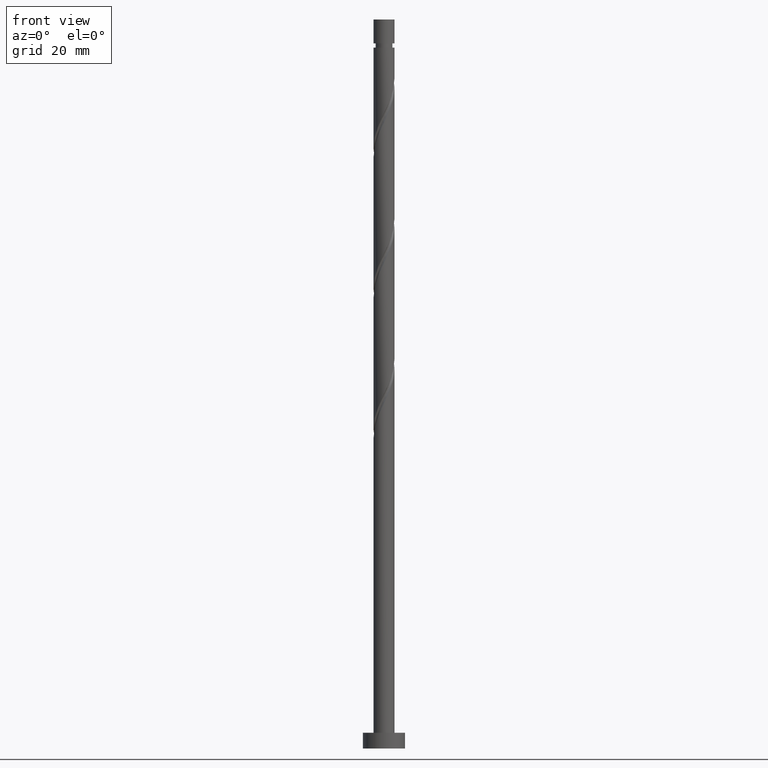
[diagram: clean part render]
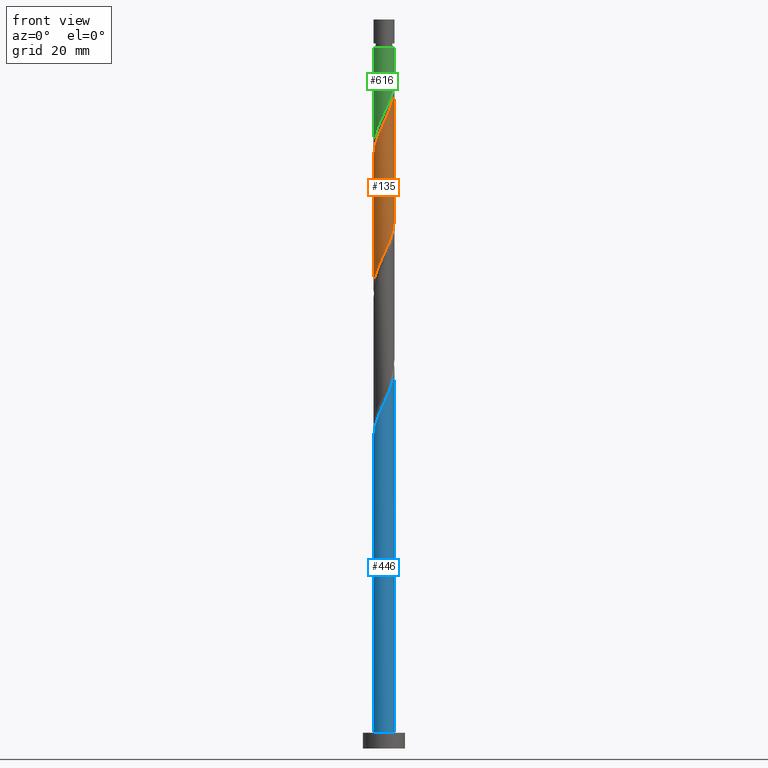
[diagram: same view with three faces highlighted in distinct colors, each labeled with its STEP entity id]
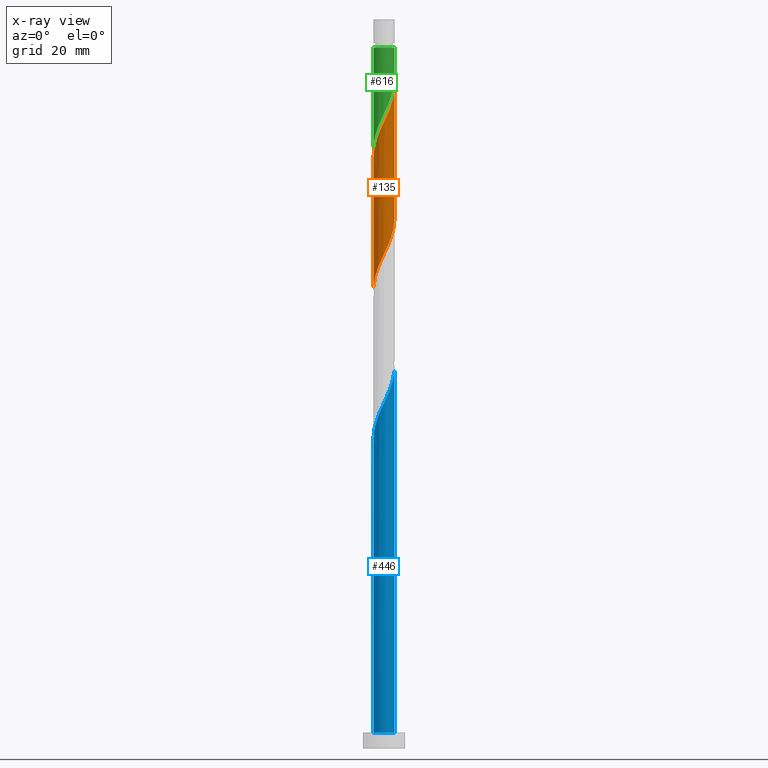
[diagram: x-ray of the same camera — body ghosted, the three highlighted faces saturated]
A machine part, front view with three faces highlighted in distinct colors.
The next image is the same camera in x-ray (body ghosted, the three faces saturated) — at least one of them is partly hidden behind the body in this view.
Their STEP definitions:

[orange] entity #135 — the highlighted cylindrical surface (edge-blend (fillet) strip) has radius 2 mm, axis along (-0, -0, -1).
#12 = CARTESIAN_POINT ( 'NONE',  ( -1.394470680848406197, -1.433684595806965723, 90.68939985791925551 ) ) ;
#41 = EDGE_LOOP ( 'NONE', ( #1239, #1375, #495, #547 ) ) ;
#55 = CARTESIAN_POINT ( 'NONE',  ( 1.883197487972274597, -0.7322950311120155487, 124.0227331912525557 ) ) ;
#90 = VERTEX_POINT ( 'NONE', #553 ) ;
#107 = CARTESIAN_POINT ( 'NONE',  ( 0.6798004310727959743, -1.902776961498555020, 120.3863695548889297 ) ) ;
#118 = CARTESIAN_POINT ( 'NONE',  ( -2.000000000000003109, -9.647149353755143079E-16, 112.2641878028608033 ) ) ;
#126 = CARTESIAN_POINT ( 'NONE',  ( 0.7248413235775366115, -1.864029252891264754, 95.53788470640414232 ) ) ;
#133 = CARTESIAN_POINT ( 'NONE',  ( -1.617545623245914665, -1.176242388590887700, 114.9318241003434622 ) ) ;
#135 = ADVANCED_FACE ( 'NONE', ( #1404 ), #1312, .T. ) ;
#160 = CARTESIAN_POINT ( 'NONE',  ( 0.9340691933046018081, -1.768478086411958028, 120.9924301609495387 ) ) ;
#167 = CARTESIAN_POINT ( 'NONE',  ( 2.000000000000000000, -1.974300332861531101E-15, 100.6297634281292517 ) ) ;
#184 = CARTESIAN_POINT ( 'NONE',  ( 1.617545623245912667, -1.176242388590886589, 97.96212713064655020 ) ) ;
#193 = CARTESIAN_POINT ( 'NONE',  ( 1.220637884402354656, -1.584311571365223825, 96.75000591852531784 ) ) ;
#196 = VERTEX_POINT ( 'NONE', #1341 ) ;
#262 = CARTESIAN_POINT ( 'NONE',  ( -1.996690616564942955, -0.1150068768444763440, 112.5075816761010543 ) ) ;
#268 = CARTESIAN_POINT ( 'NONE',  ( 1.980155124014550738, -0.4020876473299552223, 99.78030894882833479 ) ) ;
#276 = CARTESIAN_POINT ( 'NONE',  ( -2.000000000000002665, -0.05755105304765408686, 112.3862858075790143 ) ) ;
#302 = CARTESIAN_POINT ( 'NONE',  ( -2.000000000000003109, -9.647149353755143079E-16, 112.2641878028608033 ) ) ;
#375 = CARTESIAN_POINT ( 'NONE',  ( -0.7248413235775382768, -1.864029252891266086, 117.3560665245859127 ) ) ;
#384 = DIRECTION ( 'NONE',  ( -0.000000000000000000, -0.000000000000000000, -1.000000000000000000 ) ) ;
#390 = LINE ( 'NONE', #638, #756 ) ;
#397 = CARTESIAN_POINT ( 'NONE',  ( -1.999999999999998668, -0.2290578547702505907, 87.78239004776722254 ) ) ;
#415 = VERTEX_POINT ( 'NONE', #302 ) ;
#421 = CARTESIAN_POINT ( 'NONE',  ( -2.000000000000000000, 0.000000000000000000, 138.4499999999999886 ) ) ;
#425 = CARTESIAN_POINT ( 'NONE',  ( 1.394470680848407529, -1.433684595806968387, 122.2045513730707427 ) ) ;
#433 = CARTESIAN_POINT ( 'NONE',  ( 1.188337955536409085, -1.634179211325361258, 121.5984907670101336 ) ) ;
#443 = DIRECTION ( 'NONE',  ( -1.000000000000000000, 0.000000000000000000, 0.000000000000000000 ) ) ;
#495 = ORIENTED_EDGE ( 'NONE', *, *, #1131, .T. ) ;
#498 = CARTESIAN_POINT ( 'NONE',  ( -1.600603406160404640, -1.233189980288572851, 90.08333925185863222 ) ) ;
#507 = CARTESIAN_POINT ( 'NONE',  ( -1.883409435608319304, -0.6728810428757545647, 113.7197028882222583 ) ) ;
#547 = ORIENTED_EDGE ( 'NONE', *, *, #1165, .F. ) ;
#553 = CARTESIAN_POINT ( 'NONE',  ( -2.000000000000000000, 1.533074122108385710E-15, 87.29643009479592308 ) ) ;
#627 = CARTESIAN_POINT ( 'NONE',  ( -0.9340691933046014750, -1.768478086411955585, 91.90152107004047366 ) ) ;
#638 = CARTESIAN_POINT ( 'NONE',  ( 2.000000000000000000, 2.449293598294706414E-16, 138.4499999999999886 ) ) ;
#646 = CARTESIAN_POINT ( 'NONE',  ( -1.883197487972271711, -0.7322950311120145495, 88.87121803973741407 ) ) ;
#652 = CARTESIAN_POINT ( 'NONE',  ( -1.448427499289744569, -1.408810338760221326, 115.5378847064040997 ) ) ;
#730 =( BOUNDED_CURVE ( )  B_SPLINE_CURVE ( 2, ( #118, #276, #262, #1521, #507, #1282, #133, #652, #1035, #1155, #375, #1547, #916, #1430, #1257, #107, #160, #433, #425, #1580, #1063, #55, #1466, #1175, #927 ),
 .UNSPECIFIED., .F., .T. ) 
 B_SPLINE_CURVE_WITH_KNOTS ( ( 3, 2, 2, 2, 2, 2, 2, 2, 2, 2, 2, 2, 3 ),
 ( 0.5545252162417517727, 0.5568181818181818787, 0.5681818181818181213, 0.5795454545454545858, 0.5909090909090908283, 0.6022727272727272929, 0.6136363636363636465, 0.6250000000000000000, 0.6363636363636363535, 0.6477272727272727071, 0.6590909090909091717, 0.6704545454545454142, 0.6795252162417517727 ),
 .UNSPECIFIED. ) 
 CURVE ( )  GEOMETRIC_REPRESENTATION_ITEM ( )  RATIONAL_B_SPLINE_CURVE ( ( 0.9061101570135651206, 0.9072237824201472289, 0.9090909090909243817, 0.8998376744372265090, 0.9090909090909243817, 0.8998376744372265090, 0.9090909090909243817, 0.8998376744372265090, 0.9090909090909243817, 0.8998376744372265090, 0.9090909090909243817, 0.8998376744372265090, 0.9090909090909243817, 0.8998376744372265090, 0.9090909090909243817, 0.8998376744372265090, 0.9090909090909243817, 0.8998376744372265090, 0.9090909090909243817, 0.8998376744372265090, 0.9090909090909243817, 0.8998376744372265090, 0.9090909090909243817, 0.9017048011080036618, 0.9061101570135651206 ) ) 
 REPRESENTATION_ITEM ( '' )  );
#756 = VECTOR ( 'NONE', #384, 1000.000000000000000 ) ;
#763 = CARTESIAN_POINT ( 'NONE',  ( -0.1161895186125007778, -2.017223038501448240, 93.71970288822227246 ) ) ;
#775 = CARTESIAN_POINT ( 'NONE',  ( 0.4568343776401062040, -1.968245701812301407, 94.93182410034351904 ) ) ;
#802 = DIRECTION ( 'NONE',  ( -0.000000000000000000, -0.000000000000000000, -1.000000000000000000 ) ) ;
#885 = CARTESIAN_POINT ( 'NONE',  ( -2.000000000000000000, 1.533074122108385710E-15, 87.29643009479592308 ) ) ;
#894 = CARTESIAN_POINT ( 'NONE',  ( 1.996690616564939402, -0.1150068768444770795, 100.3863695548889723 ) ) ;
#905 = CARTESIAN_POINT ( 'NONE',  ( -1.948211798543800555, -0.4521844623765079452, 88.26515743367686184 ) ) ;
#916 = CARTESIAN_POINT ( 'NONE',  ( -0.1703224295138033029, -1.992734370156876489, 118.5681877367071166 ) ) ;
#922 = VECTOR ( 'NONE', #802, 1000.000000000000000 ) ;
#927 = CARTESIAN_POINT ( 'NONE',  ( 2.000000000000003109, 8.899308318580325832E-16, 125.5975211361941319 ) ) ;
#937 = CARTESIAN_POINT ( 'NONE',  ( 2.000000000000003109, 8.899308318580325832E-16, 125.5975211361941319 ) ) ;
#1020 = VERTEX_POINT ( 'NONE', #937 ) ;
#1024 = CARTESIAN_POINT ( 'NONE',  ( 2.000000000000000000, -0.05755105304764324831, 100.5076654234110407 ) ) ;
#1026 = CARTESIAN_POINT ( 'NONE',  ( -1.188337955536407309, -1.634179211325359038, 91.29546046397983616 ) ) ;
#1033 = CARTESIAN_POINT ( 'NONE',  ( 1.786663747202082320, -0.9436744384215535186, 98.56818773670713085 ) ) ;
#1035 = CARTESIAN_POINT ( 'NONE',  ( -1.220637884402356432, -1.584311571365225602, 116.1439453124647088 ) ) ;
#1063 = CARTESIAN_POINT ( 'NONE',  ( 1.741900447066339952, -0.9827425057002958653, 123.4166725851919892 ) ) ;
#1079 = DIRECTION ( 'NONE',  ( -0.000000000000000000, -0.000000000000000000, -1.000000000000000000 ) ) ;
#1131 = EDGE_CURVE ( 'NONE', #415, #90, #1535, .T. ) ;
#1155 = CARTESIAN_POINT ( 'NONE',  ( -0.9928482695149695170, -1.759812803970229877, 116.7500059185253320 ) ) ;
#1165 = EDGE_CURVE ( 'NONE', #196, #90, #1200, .T. ) ;
#1175 = CARTESIAN_POINT ( 'NONE',  ( 2.000000000000005329, -0.2290578547702369905, 125.1115611832228609 ) ) ;
#1200 =( BOUNDED_CURVE ( )  B_SPLINE_CURVE ( 2, ( #167, #1024, #894, #268, #1281, #1033, #184, #1338, #193, #1604, #126, #775, #1418, #763, #1275, #1645, #627, #1026, #12, #498, #1389, #646, #905, #397, #885 ),
 .UNSPECIFIED., .F., .T. ) 
 B_SPLINE_CURVE_WITH_KNOTS ( ( 3, 2, 2, 2, 2, 2, 2, 2, 2, 2, 2, 2, 3 ),
 ( 0.5545252162417512176, 0.5568181818181817677, 0.5681818181818182323, 0.5795454545454545858, 0.5909090909090909394, 0.6022727272727272929, 0.6136363636363636465, 0.6250000000000000000, 0.6363636363636363535, 0.6477272727272727071, 0.6590909090909090606, 0.6704545454545454142, 0.6795252162417511066 ),
 .UNSPECIFIED. ) 
 CURVE ( )  GEOMETRIC_REPRESENTATION_ITEM ( )  RATIONAL_B_SPLINE_CURVE ( ( 0.9061101570135583483, 0.9072237824201405676, 0.9090909090909180534, 0.8998376744372204028, 0.9090909090909180534, 0.8998376744372204028, 0.9090909090909180534, 0.8998376744372204028, 0.9090909090909180534, 0.8998376744372204028, 0.9090909090909180534, 0.8998376744372204028, 0.9090909090909180534, 0.8998376744372204028, 0.9090909090909180534, 0.8998376744372204028, 0.9090909090909180534, 0.8998376744372204028, 0.9090909090909180534, 0.8998376744372204028, 0.9090909090909180534, 0.8998376744372204028, 0.9090909090909180534, 0.9017048011079979997, 0.9061101570135583483 ) ) 
 REPRESENTATION_ITEM ( '' )  );
#1201 = CARTESIAN_POINT ( 'NONE',  ( 0.000000000000000000, 0.000000000000000000, 138.4499999999999886 ) ) ;
#1239 = ORIENTED_EDGE ( 'NONE', *, *, #1256, .F. ) ;
#1256 = EDGE_CURVE ( 'NONE', #1020, #196, #390, .T. ) ;
#1257 = CARTESIAN_POINT ( 'NONE',  ( 0.3979949748426480083, -1.960000000000003073, 119.7803089488283348 ) ) ;
#1275 = CARTESIAN_POINT ( 'NONE',  ( -0.3979949748426482303, -1.959999999999999964, 93.11364228216166339 ) ) ;
#1281 = CARTESIAN_POINT ( 'NONE',  ( 1.883409435608316862, -0.6728810428757546758, 99.17424834276776835 ) ) ;
#1282 = CARTESIAN_POINT ( 'NONE',  ( -1.786663747202085206, -0.9436744384215547399, 114.3257634942828957 ) ) ;
#1312 = CYLINDRICAL_SURFACE ( 'NONE', #1639, 2.000000000000000000 ) ;
#1327 = EDGE_CURVE ( 'NONE', #415, #1020, #730, .T. ) ;
#1338 = CARTESIAN_POINT ( 'NONE',  ( 1.448427499289742348, -1.408810338760219771, 97.35606652458592691 ) ) ;
#1341 = CARTESIAN_POINT ( 'NONE',  ( 2.000000000000000000, -1.974300332861531101E-15, 100.6297634281292517 ) ) ;
#1375 = ORIENTED_EDGE ( 'NONE', *, *, #1327, .F. ) ;
#1389 = CARTESIAN_POINT ( 'NONE',  ( -1.741900447066338398, -0.9827425057002938669, 89.47727864579807999 ) ) ;
#1404 = FACE_OUTER_BOUND ( 'NONE', #41, .T. ) ;
#1418 = CARTESIAN_POINT ( 'NONE',  ( 0.1703224295138022759, -1.992734370156874713, 94.32576349428289575 ) ) ;
#1430 = CARTESIAN_POINT ( 'NONE',  ( 0.1161895186125000562, -2.017223038501451349, 119.1742483427676973 ) ) ;
#1466 = CARTESIAN_POINT ( 'NONE',  ( 1.948211798543802775, -0.4521844623765088889, 124.6287937973131648 ) ) ;
#1521 = CARTESIAN_POINT ( 'NONE',  ( -1.980155124014554291, -0.4020876473299551113, 113.1136422821616492 ) ) ;
#1535 = LINE ( 'NONE', #421, #922 ) ;
#1547 = CARTESIAN_POINT ( 'NONE',  ( -0.4568343776401067591, -1.968245701812304516, 117.9621271306465076 ) ) ;
#1580 = CARTESIAN_POINT ( 'NONE',  ( 1.600603406160406861, -1.233189980288575516, 122.8106119791313802 ) ) ;
#1604 = CARTESIAN_POINT ( 'NONE',  ( 0.9928482695149669635, -1.759812803970227879, 96.14394531246469455 ) ) ;
#1639 = AXIS2_PLACEMENT_3D ( 'NONE', #1201, #1079, #443 ) ;
#1645 = CARTESIAN_POINT ( 'NONE',  ( -0.6798004310727957522, -1.902776961498551689, 92.50758167610109695 ) ) ;

[blue] entity #446 — the highlighted cylindrical surface (edge-blend (fillet) strip) has radius 2 mm, axis along (-0, -0, -1).
#6 = CARTESIAN_POINT ( 'NONE',  ( -2.000000000000000000, 0.000000000000000000, 3.000000000000000000 ) ) ;
#19 = LINE ( 'NONE', #673, #1209 ) ;
#67 = EDGE_CURVE ( 'NONE', #812, #1207, #19, .T. ) ;
#68 = CARTESIAN_POINT ( 'NONE',  ( 1.394470680848407529, -1.433684595806968387, 68.87121803973739986 ) ) ;
#110 = CARTESIAN_POINT ( 'NONE',  ( -1.996690616564942955, -0.1150068768444763440, 59.17424834276772572 ) ) ;
#111 = AXIS2_PLACEMENT_3D ( 'NONE', #783, #157, #674 ) ;
#157 = DIRECTION ( 'NONE',  ( -0.000000000000000000, -0.000000000000000000, -1.000000000000000000 ) ) ;
#188 = EDGE_CURVE ( 'NONE', #812, #1116, #1654, .T. ) ;
#197 = CARTESIAN_POINT ( 'NONE',  ( 0.3979949748426480083, -1.960000000000003073, 66.44697561549499198 ) ) ;
#243 = CARTESIAN_POINT ( 'NONE',  ( -2.000000000000003109, -9.647149353755143079E-16, 58.93085446952746764 ) ) ;
#255 = CARTESIAN_POINT ( 'NONE',  ( -0.9928482695149695170, -1.759812803970229877, 63.41667258519198214 ) ) ;
#282 = CYLINDRICAL_SURFACE ( 'NONE', #111, 2.000000000000000000 ) ;
#314 = DIRECTION ( 'NONE',  ( -0.000000000000000000, -0.000000000000000000, -1.000000000000000000 ) ) ;
#379 = CARTESIAN_POINT ( 'NONE',  ( -0.7248413235775382768, -1.864029252891266086, 64.02273319125256990 ) ) ;
#446 = ADVANCED_FACE ( 'NONE', ( #533 ), #282, .T. ) ;
#452 = CARTESIAN_POINT ( 'NONE',  ( 1.883197487972274597, -0.7322950311120155487, 70.68939985791921288 ) ) ;
#533 = FACE_OUTER_BOUND ( 'NONE', #672, .T. ) ;
#573 = AXIS2_PLACEMENT_3D ( 'NONE', #1009, #1166, #1539 ) ;
#582 = CARTESIAN_POINT ( 'NONE',  ( 0.6798004310727959743, -1.902776961498555020, 67.05303622155561527 ) ) ;
#611 = ORIENTED_EDGE ( 'NONE', *, *, #67, .T. ) ;
#617 = CARTESIAN_POINT ( 'NONE',  ( 1.948211798543802775, -0.4521844623765088889, 71.29546046397985037 ) ) ;
#631 = CARTESIAN_POINT ( 'NONE',  ( -1.980155124014554291, -0.4020876473299551113, 59.78030894882834900 ) ) ;
#670 = EDGE_CURVE ( 'NONE', #1116, #1121, #1575, .T. ) ;
#672 = EDGE_LOOP ( 'NONE', ( #1370, #1075, #611, #1037 ) ) ;
#673 = CARTESIAN_POINT ( 'NONE',  ( -2.000000000000000000, 0.000000000000000000, 138.4499999999999886 ) ) ;
#674 = DIRECTION ( 'NONE',  ( -1.000000000000000000, 0.000000000000000000, 0.000000000000000000 ) ) ;
#738 = CARTESIAN_POINT ( 'NONE',  ( 0.9340691933046018081, -1.768478086411958028, 67.65909682761621013 ) ) ;
#748 = CARTESIAN_POINT ( 'NONE',  ( -2.000000000000002665, -0.05755105304765074925, 59.05295247424568572 ) ) ;
#753 = CIRCLE ( 'NONE', #573, 2.000000000000000000 ) ;
#757 = CARTESIAN_POINT ( 'NONE',  ( -0.4568343776401067591, -1.968245701812304516, 64.62879379731320739 ) ) ;
#783 = CARTESIAN_POINT ( 'NONE',  ( 0.000000000000000000, 0.000000000000000000, 138.4499999999999886 ) ) ;
#812 = VERTEX_POINT ( 'NONE', #978 ) ;
#836 = CARTESIAN_POINT ( 'NONE',  ( 2.000000000000003109, 8.899308318580325832E-16, 72.26418780286080334 ) ) ;
#877 = CARTESIAN_POINT ( 'NONE',  ( -1.220637884402356432, -1.584311571365225602, 62.81061197913137306 ) ) ;
#964 = CARTESIAN_POINT ( 'NONE',  ( -0.1703224295138033029, -1.992734370156876489, 65.23485440337380226 ) ) ;
#978 = CARTESIAN_POINT ( 'NONE',  ( -2.000000000000003109, -9.647149353755143079E-16, 58.93085446952746764 ) ) ;
#1009 = CARTESIAN_POINT ( 'NONE',  ( 0.000000000000000000, 0.000000000000000000, 3.000000000000000000 ) ) ;
#1037 = ORIENTED_EDGE ( 'NONE', *, *, #1191, .T. ) ;
#1061 = CARTESIAN_POINT ( 'NONE',  ( 2.000000000000003109, 8.899308318580325832E-16, 72.26418780286080334 ) ) ;
#1075 = ORIENTED_EDGE ( 'NONE', *, *, #188, .F. ) ;
#1090 = CARTESIAN_POINT ( 'NONE',  ( 1.188337955536409085, -1.634179211325361258, 68.26515743367681921 ) ) ;
#1116 = VERTEX_POINT ( 'NONE', #1061 ) ;
#1121 = VERTEX_POINT ( 'NONE', #1571 ) ;
#1166 = DIRECTION ( 'NONE',  ( 0.000000000000000000, 0.000000000000000000, 1.000000000000000000 ) ) ;
#1181 = DIRECTION ( 'NONE',  ( -0.000000000000000000, -0.000000000000000000, -1.000000000000000000 ) ) ;
#1191 = EDGE_CURVE ( 'NONE', #1207, #1121, #753, .T. ) ;
#1207 = VERTEX_POINT ( 'NONE', #6 ) ;
#1209 = VECTOR ( 'NONE', #1181, 1000.000000000000000 ) ;
#1224 = CARTESIAN_POINT ( 'NONE',  ( 0.1161895186125000562, -2.017223038501451349, 65.84091500943441133 ) ) ;
#1248 = CARTESIAN_POINT ( 'NONE',  ( 1.741900447066339952, -0.9827425057002958653, 70.08333925185864643 ) ) ;
#1268 = CARTESIAN_POINT ( 'NONE',  ( -1.448427499289744569, -1.408810338760221326, 62.20455137307078530 ) ) ;
#1335 = VECTOR ( 'NONE', #314, 1000.000000000000000 ) ;
#1342 = CARTESIAN_POINT ( 'NONE',  ( -1.786663747202085206, -0.9436744384215547399, 60.99243016094956005 ) ) ;
#1357 = CARTESIAN_POINT ( 'NONE',  ( 1.600603406160406861, -1.233189980288575516, 69.47727864579803736 ) ) ;
#1370 = ORIENTED_EDGE ( 'NONE', *, *, #670, .F. ) ;
#1391 = CARTESIAN_POINT ( 'NONE',  ( -1.617545623245914665, -1.176242388590887700, 61.59849076701015491 ) ) ;
#1457 = CARTESIAN_POINT ( 'NONE',  ( 2.000000000000000000, 2.449293598294706414E-16, 138.4499999999999886 ) ) ;
#1475 = CARTESIAN_POINT ( 'NONE',  ( 2.000000000000003997, -0.2290578547702424028, 71.77822784988950389 ) ) ;
#1524 = CARTESIAN_POINT ( 'NONE',  ( -1.883409435608319304, -0.6728810428757545647, 60.38636955488893676 ) ) ;
#1539 = DIRECTION ( 'NONE',  ( 1.000000000000000000, 0.000000000000000000, 0.000000000000000000 ) ) ;
#1571 = CARTESIAN_POINT ( 'NONE',  ( 2.000000000000000000, 2.449293598294706414E-16, 3.000000000000000000 ) ) ;
#1575 = LINE ( 'NONE', #1457, #1335 ) ;
#1654 =( BOUNDED_CURVE ( )  B_SPLINE_CURVE ( 2, ( #243, #748, #110, #631, #1524, #1342, #1391, #1268, #877, #255, #379, #757, #964, #1224, #197, #582, #738, #1090, #68, #1357, #1248, #452, #617, #1475, #836 ),
 .UNSPECIFIED., .F., .T. ) 
 B_SPLINE_CURVE_WITH_KNOTS ( ( 3, 2, 2, 2, 2, 2, 2, 2, 2, 2, 2, 2, 3 ),
 ( 0.05452521624175155068, 0.05681818181818176772, 0.06818181818181823228, 0.07954545454545458583, 0.09090909090909093937, 0.1022727272727272929, 0.1136363636363636465, 0.1250000000000000000, 0.1363636363636363535, 0.1477272727272727071, 0.1590909090909090606, 0.1704545454545454142, 0.1795252162417514674 ),
 .UNSPECIFIED. ) 
 CURVE ( )  GEOMETRIC_REPRESENTATION_ITEM ( )  RATIONAL_B_SPLINE_CURVE ( ( 0.9061101570135648986, 0.9072237824201470069, 0.9090909090909243817, 0.8998376744372265090, 0.9090909090909243817, 0.8998376744372265090, 0.9090909090909243817, 0.8998376744372265090, 0.9090909090909243817, 0.8998376744372265090, 0.9090909090909243817, 0.8998376744372265090, 0.9090909090909243817, 0.8998376744372265090, 0.9090909090909243817, 0.8998376744372265090, 0.9090909090909243817, 0.8998376744372265090, 0.9090909090909243817, 0.8998376744372265090, 0.9090909090909243817, 0.8998376744372265090, 0.9090909090909243817, 0.9017048011080037728, 0.9061101570135647876 ) ) 
 REPRESENTATION_ITEM ( '' )  );

[green] entity #616 — the highlighted cylindrical surface (edge-blend (fillet) strip) has radius 2 mm, axis along (-0, -0, -1).
#2 = CARTESIAN_POINT ( 'NONE',  ( 1.617545623245912667, -1.176242388590886589, 124.6287937973132074 ) ) ;
#4 = CARTESIAN_POINT ( 'NONE',  ( -2.000000000000000000, 0.000000000000000000, 138.4499999999999886 ) ) ;
#8 = CARTESIAN_POINT ( 'NONE',  ( -1.948211798543800555, -0.4521844623765079452, 114.9318241003434906 ) ) ;
#14 = EDGE_CURVE ( 'NONE', #880, #591, #1127, .T. ) ;
#20 = DIRECTION ( 'NONE',  ( -0.000000000000000000, -0.000000000000000000, -1.000000000000000000 ) ) ;
#81 = CIRCLE ( 'NONE', #552, 1.999999999999995781 ) ;
#139 = CARTESIAN_POINT ( 'NONE',  ( 1.980155124014550738, -0.4020876473299552223, 126.4469756154950062 ) ) ;
#166 = LINE ( 'NONE', #1603, #1505 ) ;
#192 = DIRECTION ( 'NONE',  ( -0.000000000000000000, -0.000000000000000000, -1.000000000000000000 ) ) ;
#259 = ORIENTED_EDGE ( 'NONE', *, *, #491, .T. ) ;
#274 = CARTESIAN_POINT ( 'NONE',  ( 1.786663747202082320, -0.9436744384215535186, 125.2348544033737880 ) ) ;
#281 = CARTESIAN_POINT ( 'NONE',  ( -1.188337955536407309, -1.634179211325359038, 117.9621271306465218 ) ) ;
#322 = CARTESIAN_POINT ( 'NONE',  ( 0.000000000000000000, 0.000000000000000000, 138.4499999999999886 ) ) ;
#387 = CARTESIAN_POINT ( 'NONE',  ( -1.883197487972271711, -0.7322950311120145495, 115.5378847064040855 ) ) ;
#396 = DIRECTION ( 'NONE',  ( -0.000000000000000000, -0.000000000000000000, -1.000000000000000000 ) ) ;
#411 = CARTESIAN_POINT ( 'NONE',  ( -0.6798004310727957522, -1.902776961498551689, 119.1742483427677115 ) ) ;
#462 = CARTESIAN_POINT ( 'NONE',  ( 2.000000000000000000, -0.05755105304764324831, 127.1743320900776979 ) ) ;
#491 = EDGE_CURVE ( 'NONE', #1622, #1007, #81, .T. ) ;
#513 = CARTESIAN_POINT ( 'NONE',  ( 0.1703224295138022759, -1.992734370156874713, 120.9924301609495814 ) ) ;
#522 = CARTESIAN_POINT ( 'NONE',  ( -0.1161895186125007778, -2.017223038501448240, 120.3863695548889581 ) ) ;
#525 = EDGE_CURVE ( 'NONE', #1622, #880, #166, .T. ) ;
#542 = DIRECTION ( 'NONE',  ( -1.000000000000000000, 0.000000000000000000, 0.000000000000000000 ) ) ;
#552 = AXIS2_PLACEMENT_3D ( 'NONE', #1173, #20, #542 ) ;
#566 = DIRECTION ( 'NONE',  ( -1.000000000000000000, 0.000000000000000000, 0.000000000000000000 ) ) ;
#591 = VERTEX_POINT ( 'NONE', #1478 ) ;
#616 = ADVANCED_FACE ( 'NONE', ( #1086 ), #1468, .T. ) ;
#642 = CARTESIAN_POINT ( 'NONE',  ( 0.7248413235775366115, -1.864029252891264754, 122.2045513730707711 ) ) ;
#658 = CARTESIAN_POINT ( 'NONE',  ( 1.220637884402354656, -1.584311571365223825, 123.4166725851920035 ) ) ;
#665 = CARTESIAN_POINT ( 'NONE',  ( -1.999999999999998668, -0.2290578547702505907, 114.4490567144338939 ) ) ;
#726 = AXIS2_PLACEMENT_3D ( 'NONE', #322, #192, #566 ) ;
#774 = CARTESIAN_POINT ( 'NONE',  ( 2.000000000000000000, 8.226251386923045924E-16, 127.2964300947958804 ) ) ;
#778 = ORIENTED_EDGE ( 'NONE', *, *, #525, .F. ) ;
#782 = CARTESIAN_POINT ( 'NONE',  ( 1.448427499289742348, -1.408810338760219771, 124.0227331912525983 ) ) ;
#880 = VERTEX_POINT ( 'NONE', #774 ) ;
#947 = ORIENTED_EDGE ( 'NONE', *, *, #14, .F. ) ;
#1007 = VERTEX_POINT ( 'NONE', #1553 ) ;
#1011 = EDGE_CURVE ( 'NONE', #1007, #591, #1163, .T. ) ;
#1022 = CARTESIAN_POINT ( 'NONE',  ( -1.394470680848406197, -1.433684595806965723, 117.3560665245859411 ) ) ;
#1050 = CARTESIAN_POINT ( 'NONE',  ( -1.741900447066338398, -0.9827425057002938669, 116.1439453124647514 ) ) ;
#1068 = DIRECTION ( 'NONE',  ( -0.000000000000000000, -0.000000000000000000, -1.000000000000000000 ) ) ;
#1086 = FACE_OUTER_BOUND ( 'NONE', #1271, .T. ) ;
#1127 =( BOUNDED_CURVE ( )  B_SPLINE_CURVE ( 2, ( #1615, #462, #1415, #139, #1150, #274, #2, #782, #658, #1280, #642, #1658, #513, #522, #1559, #411, #1425, #281, #1022, #1162, #1050, #387, #8, #665, #1143 ),
 .UNSPECIFIED., .F., .T. ) 
 B_SPLINE_CURVE_WITH_KNOTS ( ( 3, 2, 2, 2, 2, 2, 2, 2, 2, 2, 2, 2, 3 ),
 ( 0.3045252162417512731, 0.3068181818181818232, 0.3181818181818181768, 0.3295454545454545303, 0.3409090909090908839, 0.3522727272727272929, 0.3636363636363636465, 0.3750000000000000000, 0.3863636363636363535, 0.3977272727272727071, 0.4090909090909091161, 0.4204545454545454697, 0.4295252162417511621 ),
 .UNSPECIFIED. ) 
 CURVE ( )  GEOMETRIC_REPRESENTATION_ITEM ( )  RATIONAL_B_SPLINE_CURVE ( ( 0.9061101570135583483, 0.9072237824201405676, 0.9090909090909180534, 0.8998376744372204028, 0.9090909090909180534, 0.8998376744372204028, 0.9090909090909180534, 0.8998376744372204028, 0.9090909090909180534, 0.8998376744372204028, 0.9090909090909180534, 0.8998376744372204028, 0.9090909090909180534, 0.8998376744372204028, 0.9090909090909180534, 0.8998376744372204028, 0.9090909090909180534, 0.8998376744372204028, 0.9090909090909180534, 0.8998376744372204028, 0.9090909090909180534, 0.8998376744372204028, 0.9090909090909180534, 0.9017048011079979997, 0.9061101570135583483 ) ) 
 REPRESENTATION_ITEM ( '' )  );
#1143 = CARTESIAN_POINT ( 'NONE',  ( -2.000000000000000000, -1.256372939093701574E-15, 113.9630967614625803 ) ) ;
#1150 = CARTESIAN_POINT ( 'NONE',  ( 1.883409435608316862, -0.6728810428757546758, 125.8409150094344255 ) ) ;
#1162 = CARTESIAN_POINT ( 'NONE',  ( -1.600603406160404640, -1.233189980288572851, 116.7500059185253463 ) ) ;
#1163 = LINE ( 'NONE', #4, #1190 ) ;
#1173 = CARTESIAN_POINT ( 'NONE',  ( 0.000000000000000000, 0.000000000000000000, 133.1136422821616918 ) ) ;
#1190 = VECTOR ( 'NONE', #396, 1000.000000000000000 ) ;
#1222 = CARTESIAN_POINT ( 'NONE',  ( 1.999999999999995781, 2.449293598294703456E-16, 133.1136422821616918 ) ) ;
#1271 = EDGE_LOOP ( 'NONE', ( #778, #259, #1635, #947 ) ) ;
#1280 = CARTESIAN_POINT ( 'NONE',  ( 0.9928482695149669635, -1.759812803970227879, 122.8106119791313802 ) ) ;
#1415 = CARTESIAN_POINT ( 'NONE',  ( 1.996690616564939402, -0.1150068768444770795, 127.0530362215556011 ) ) ;
#1425 = CARTESIAN_POINT ( 'NONE',  ( -0.9340691933046014750, -1.768478086411955585, 118.5681877367071451 ) ) ;
#1468 = CYLINDRICAL_SURFACE ( 'NONE', #726, 2.000000000000000000 ) ;
#1478 = CARTESIAN_POINT ( 'NONE',  ( -2.000000000000000000, -1.256372939093701574E-15, 113.9630967614625803 ) ) ;
#1505 = VECTOR ( 'NONE', #1068, 1000.000000000000000 ) ;
#1553 = CARTESIAN_POINT ( 'NONE',  ( -1.999999999999995781, 0.000000000000000000, 133.1136422821616918 ) ) ;
#1559 = CARTESIAN_POINT ( 'NONE',  ( -0.3979949748426482303, -1.959999999999999964, 119.7803089488283632 ) ) ;
#1603 = CARTESIAN_POINT ( 'NONE',  ( 2.000000000000000000, 2.449293598294706414E-16, 138.4499999999999886 ) ) ;
#1615 = CARTESIAN_POINT ( 'NONE',  ( 2.000000000000000000, 8.226251386923045924E-16, 127.2964300947958804 ) ) ;
#1622 = VERTEX_POINT ( 'NONE', #1222 ) ;
#1635 = ORIENTED_EDGE ( 'NONE', *, *, #1011, .T. ) ;
#1658 = CARTESIAN_POINT ( 'NONE',  ( 0.4568343776401062040, -1.968245701812301407, 121.5984907670101762 ) ) ;